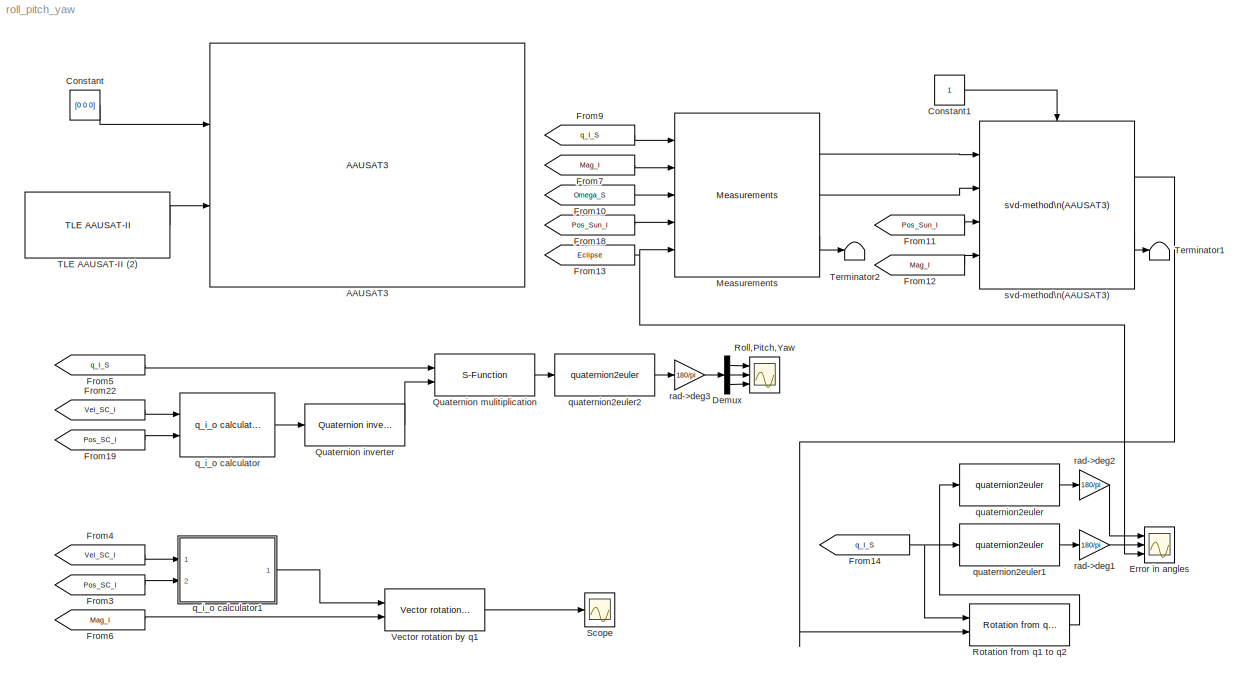
MODEL roll_pitch_yaw
KIND model
BLOCK [Reference] AAUSAT3  REF=aausat3_lib/AAUSAT3  (lib defined in mdl_4157f6465749, slx_d9305f96731e)
  Cd = 2
  Dim = [0.1,0.1,0.11]
  FunctionWithSeparateData = off
  Ports = [2]
  RTWMemSecDataConstants = Inherit from model
  RTWMemSecDataInternal = Inherit from model
  RTWMemSecDataParameters = Inherit from model
  RTWMemSecFuncExecute = Inherit from model
  RTWMemSecFuncInitTerm = Inherit from model
  SID = 11
  ShowPortLabels = none
  SourceBlock = aausat3_lib/AAUSAT3
  SystemSampleTime = -1
  Ts = 1
  enable_env_disturbance = on
  enable_sensor_emulation = on
  inertia_c = [0.0017464,0.0022092,0.0022388]
  init_jd = 2455153.1954318+0.035
  mass_sc = 0.957820
  q_init_I_S = [0 0 0 1]
  q_s_c = [-0.020656,0.71468,-0.007319,0.6991]
  r_com_s = [0.049073,0.048909,0.042976]
  redfac = 1
  refldata = load('lib/AlbedoToolbox-1.0/refl_data/2005/ga050101-051231')
  rho = 5e-14
  sat_temp_start = 293.15
  solar_absorb_coeff = 1.5
  solar_m_flux = 4.5565e-6
  theta_e = 65
  w_init_s = [0.02,0.02,0.02]
BLOCK [Constant] Constant
  OutDataType = fixdt(1, 16)
  OutScaling = 2^0
  SID = 12
  Value = [0 0 0]
BLOCK [Constant] Constant1
  OutDataType = fixdt(1, 16)
  OutScaling = 2^0
  SID = 39
BLOCK [Demux] Demux
  DisplayOption = bar
  Outputs = 3
  Ports = [1, 3]
  SID = 1
BLOCK [Scope] Error in angles
  DataFormat = StructureWithTime
  Floating = off
  LimitDataPoints = off
  NumInputPorts = 3
  Ports = [3]
  SID = 45
  SampleInput = on
  SampleTime = 1
  SaveName = ScopeData2
  TimeRange = 6000
  YMax = 17.5~140~1
  YMin = -27.5~-80~-1
BLOCK [From] From10
  CloseFcn = tagdialog Close
  GotoTag = Omega_S
  SID = 36
  TagVisibility = global
BLOCK [From] From11
  CloseFcn = tagdialog Close
  GotoTag = Pos_Sun_I
  SID = 41
  TagVisibility = global
BLOCK [From] From12
  CloseFcn = tagdialog Close
  GotoTag = Mag_I
  SID = 42
  TagVisibility = global
BLOCK [From] From13
  CloseFcn = tagdialog Close
  GotoTag = Eclipse
  SID = 33
  TagVisibility = global
BLOCK [From] From14
  CloseFcn = tagdialog Close
  GotoTag = q_I_S
  SID = 47
  TagVisibility = global
BLOCK [From] From18
  CloseFcn = tagdialog Close
  GotoTag = Pos_Sun_I
  SID = 34
  TagVisibility = global
BLOCK [From] From19
  CloseFcn = tagdialog Close
  GotoTag = Pos_SC_I
  SID = 2
  TagVisibility = global
BLOCK [From] From22
  CloseFcn = tagdialog Close
  GotoTag = Vel_SC_I
  SID = 3
  TagVisibility = global
BLOCK [From] From3
  CloseFcn = tagdialog Close
  GotoTag = Pos_SC_I
  SID = 25
  TagVisibility = global
BLOCK [From] From4
  CloseFcn = tagdialog Close
  GotoTag = Vel_SC_I
  SID = 26
  TagVisibility = global
BLOCK [From] From5
  CloseFcn = tagdialog Close
  GotoTag = q_I_S
  SID = 4
  TagVisibility = global
BLOCK [From] From6
  CloseFcn = tagdialog Close
  GotoTag = Mag_I
  SID = 29
  TagVisibility = global
BLOCK [From] From7
  CloseFcn = tagdialog Close
  GotoTag = Mag_I
  SID = 32
  TagVisibility = global
BLOCK [From] From9
  CloseFcn = tagdialog Close
  GotoTag = q_I_S
  SID = 35
  TagVisibility = global
BLOCK [Reference] Measurements  REF=aausat3_lib/Sensor Emulation/Measurements  (lib defined in mdl_4157f6465749, slx_d9305f96731e)
  FunctionWithSeparateData = off
  Ports = [5, 3]
  RTWMemSecDataConstants = Inherit from model
  RTWMemSecDataInternal = Inherit from model
  RTWMemSecDataParameters = Inherit from model
  RTWMemSecFuncExecute = Inherit from model
  RTWMemSecFuncInitTerm = Inherit from model
  SID = 37
  ShowPortLabels = FromPortIcon
  SourceBlock = aausat3_lib/Sensor Emulation/Measurements
  SystemSampleTime = -1
  bias_gyro = [-0.2 -0.2 -0.2]
  bias_mag = [2000 4000 0]
  bias_sun = [0 0]
  heading_gyro = 0
  heading_mag = 0
  noise_gyro = 0.2
  noise_mag = 3
  noise_sun = 3.33
  nr_sample_sun = 1
  s_freq_gyro = 1
  s_freq_mag = 1
  s_freq_sun = 1
  tilt_gyro = 0
  tilt_mag = 0
BLOCK [Reference] Quaternion inverter  REF=aausat3_lib/Math Utilities/Quaternion operations/Quaternion inverter  (lib defined in mdl_4157f6465749, slx_d9305f96731e)
  FunctionWithSeparateData = off
  Ports = [1, 1]
  RTWMemSecDataConstants = Inherit from model
  RTWMemSecDataInternal = Inherit from model
  RTWMemSecDataParameters = Inherit from model
  RTWMemSecFuncExecute = Inherit from model
  RTWMemSecFuncInitTerm = Inherit from model
  SID = 5
  ShowPortLabels = FromPortIcon
  SourceBlock = aausat3_lib/Math Utilities/Quaternion operations/Quaternion inverter
  SourceType = SubSystem
  SystemSampleTime = -1
BLOCK [S-Function] Quaternion mulitiplication
  EnableBusSupport = off
  FunctionName = qmul
  Ports = [2, 1]
  SID = 6
BLOCK [Scope] Roll,Pitch,Yaw
  DataFormat = StructureWithTime
  Floating = off
  LimitDataPoints = off
  NumInputPorts = 3
  Ports = [3]
  SID = 7
  SampleInput = on
  SampleTime = 1
  TimeRange = 48000
  YMax = 88.1~-35~177.7
  YMin = 86.5~-38~175.7
BLOCK [Reference] Rotation from q1 to q2  REF=aausat3_lib/Math Utilities/Quaternion operations/Rotation from q1 to q2  (lib defined in mdl_4157f6465749, slx_d9305f96731e)
  FunctionWithSeparateData = off
  Ports = [2, 1]
  RTWMemSecDataConstants = Inherit from model
  RTWMemSecDataInternal = Inherit from model
  RTWMemSecDataParameters = Inherit from model
  RTWMemSecFuncExecute = Inherit from model
  RTWMemSecFuncInitTerm = Inherit from model
  SID = 48
  ShowPortLabels = FromPortIcon
  SourceBlock = aausat3_lib/Math Utilities/Quaternion operations/Rotation from q1 to q2
  SourceType = SubSystem
  SystemSampleTime = -1
BLOCK [Scope] Scope
  DataFormat = StructureWithTime
  Floating = off
  LimitDataPoints = off
  NumInputPorts = 1
  Ports = [1]
  SID = 31
  SampleTime = 0
  SaveName = ScopeData1
  YMax = -1e-006
  YMin = -2.2e-005
BLOCK [Reference] TLE AAUSAT-II (2)  REF=aausat3_lib/Orbit and Ephemeris/TLE AAUSAT-II  (lib defined in mdl_4157f6465749, slx_d9305f96731e)
  FunctionWithSeparateData = off
  JulianDay = 09321.69542252
  Ports = [0, 1]
  RTWMemSecDataConstants = Inherit from model
  RTWMemSecDataInternal = Inherit from model
  RTWMemSecDataParameters = Inherit from model
  RTWMemSecFuncExecute = Inherit from model
  RTWMemSecFuncInitTerm = Inherit from model
  SID = 17
  ShowPortLabels = FromPortIcon
  SourceBlock = aausat3_lib/Orbit and Ephemeris/TLE AAUSAT-II
  SystemSampleTime = -1
  bstar = .76898e-4
  eo = 0.0014245
  omegao = 254.1774
  satname = 'AAUSAT-II'
  ts = 1
  xincl = 97.9251
  xmo = 105.7862
  xndd6o = 0.0
  xndt2o = 0.00000555
  xno = 14.81823818
  xnodeo = 24.1597
BLOCK [Terminator] Terminator1
  SID = 54
BLOCK [Terminator] Terminator2
  SID = 40
BLOCK [Reference] Vector rotation by q1  REF=aausat3_lib/Math Utilities/Quaternion operations/Vector rotation by q  (lib defined in mdl_4157f6465749, slx_d9305f96731e)
  FunctionWithSeparateData = off
  Ports = [2, 1]
  RTWMemSecDataConstants = Inherit from model
  RTWMemSecDataInternal = Inherit from model
  RTWMemSecDataParameters = Inherit from model
  RTWMemSecFuncExecute = Inherit from model
  RTWMemSecFuncInitTerm = Inherit from model
  SID = 30
  ShowPortLabels = FromPortIcon
  SourceBlock = aausat3_lib/Math Utilities/Quaternion operations/Vector rotation by q
  SourceType = SubSystem
  SystemSampleTime = -1
BLOCK [Reference] q_i_o calculator  REF=aausat3_lib/Math Utilities/q_i_o calculator  (lib defined in mdl_4157f6465749, slx_d9305f96731e)
  FunctionWithSeparateData = off
  Ports = [2, 1]
  RTWMemSecDataConstants = Inherit from model
  RTWMemSecDataInternal = Inherit from model
  RTWMemSecDataParameters = Inherit from model
  RTWMemSecFuncExecute = Inherit from model
  RTWMemSecFuncInitTerm = Inherit from model
  SID = 8
  ShowPortLabels = FromPortIcon
  SourceBlock = aausat3_lib/Math Utilities/q_i_o calculator
  SourceType = SubSystem
  SystemSampleTime = -1
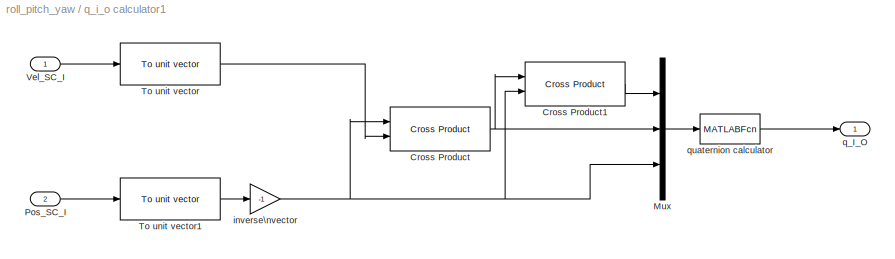
BLOCK [SubSystem] q_i_o calculator1
  AncestorBlock = aausat3_lib/Math Utilities/q_i_o calculator
  FunctionWithSeparateData = off
  MaskHideContents = off
  MinAlgLoopOccurrences = off
  Opaque = off
  Ports = [2, 1]
  PropExecContextOutsideSubsystem = off
  RTWSystemCode = Auto
  RequestExecContextInheritance = off
  SID = 22
BLOCK [Reference] q_i_o calculator1/Cross Product  REF=aausat3_lib/Math Utilities/Vector operations/Cross Product  (lib defined in mdl_4157f6465749, slx_d9305f96731e)
  FunctionWithSeparateData = off
  Ports = [2, 1]
  RTWMemSecDataConstants = Inherit from model
  RTWMemSecDataInternal = Inherit from model
  RTWMemSecDataParameters = Inherit from model
  RTWMemSecFuncExecute = Inherit from model
  RTWMemSecFuncInitTerm = Inherit from model
  SID = 522
  ShowPortLabels = FromPortIcon
  SourceBlock = aausat3_lib/Math Utilities/Vector operations/Cross Product
  SourceType = SubSystem
  SystemSampleTime = -1
BLOCK [Reference] q_i_o calculator1/Cross Product1  REF=aausat3_lib/Math Utilities/Vector operations/Cross Product  (lib defined in mdl_4157f6465749, slx_d9305f96731e)
  FunctionWithSeparateData = off
  Ports = [2, 1]
  RTWMemSecDataConstants = Inherit from model
  RTWMemSecDataInternal = Inherit from model
  RTWMemSecDataParameters = Inherit from model
  RTWMemSecFuncExecute = Inherit from model
  RTWMemSecFuncInitTerm = Inherit from model
  SID = 526
  ShowPortLabels = FromPortIcon
  SourceBlock = aausat3_lib/Math Utilities/Vector operations/Cross Product
  SourceType = SubSystem
  SystemSampleTime = -1
BLOCK [Mux] q_i_o calculator1/Mux
  DisplayOption = bar
  Inputs = 3
  Ports = [3, 1]
  SID = 509
BLOCK [Inport] q_i_o calculator1/Pos_SC_I
  IconDisplay = Port number
  OutDataType = sfix(16)
  OutScaling = 2^0
  Port = 2
  SID = 520
BLOCK [Reference] q_i_o calculator1/To unit vector  REF=aausat3_lib/Math Utilities/Vector operations/To unit vector  (lib defined in mdl_4157f6465749, slx_d9305f96731e)
  FunctionWithSeparateData = off
  Ports = [1, 1]
  RTWMemSecDataConstants = Inherit from model
  RTWMemSecDataInternal = Inherit from model
  RTWMemSecDataParameters = Inherit from model
  RTWMemSecFuncExecute = Inherit from model
  RTWMemSecFuncInitTerm = Inherit from model
  SID = 523
  ShowPortLabels = FromPortIcon
  SourceBlock = aausat3_lib/Math Utilities/Vector operations/To unit vector
  SourceType = SubSystem
  SystemSampleTime = -1
BLOCK [Reference] q_i_o calculator1/To unit vector1  REF=aausat3_lib/Math Utilities/Vector operations/To unit vector  (lib defined in mdl_4157f6465749, slx_d9305f96731e)
  FunctionWithSeparateData = off
  Ports = [1, 1]
  RTWMemSecDataConstants = Inherit from model
  RTWMemSecDataInternal = Inherit from model
  RTWMemSecDataParameters = Inherit from model
  RTWMemSecFuncExecute = Inherit from model
  RTWMemSecFuncInitTerm = Inherit from model
  SID = 524
  ShowPortLabels = FromPortIcon
  SourceBlock = aausat3_lib/Math Utilities/Vector operations/To unit vector
  SourceType = SubSystem
  SystemSampleTime = -1
BLOCK [Inport] q_i_o calculator1/Vel_SC_I
  IconDisplay = Port number
  OutDataType = sfix(16)
  OutScaling = 2^0
  SID = 496
BLOCK [Gain] q_i_o calculator1/inverse\nvector
  Gain = -1
  OutDataType = fixdt(1, 16)
  OutDataTypeMode = Inherit via internal rule
  OutDataTypeStr = Inherit: Inherit via internal rule
  OutScaling = 2^0
  ParamDataTypeStr = Inherit: Inherit via internal rule
  ParameterDataType = fixdt(1, 16)
  ParameterDataTypeMode = Inherit via internal rule
  ParameterScaling = 2^0
  SID = 525
  SaturateOnIntegerOverflow = off
BLOCK [Outport] q_i_o calculator1/q_I_O
  IconDisplay = Port number
  OutDataType = sfix(16)
  OutScaling = 2^0
  SID = 518
BLOCK [MATLABFcn] q_i_o calculator1/quaternion calculator
  Description = Direction cosine matrix computation.                               \nO1,O2,O3 are the three unit vectors representing the axes of the   \nrotated coordinate system given in the reference coordinate system.
  MATLABFcn = dcmatrix_and_q
  Ports = [1, 1]
  SID = 519
BLOCK [Reference] quaternion2euler  REF=aausat3_lib/Math Utilities/Quaternion operations/quaternion2euler  (lib defined in mdl_4157f6465749, slx_d9305f96731e)
  FunctionWithSeparateData = off
  Ports = [1, 1]
  RTWMemSecDataConstants = Inherit from model
  RTWMemSecDataInternal = Inherit from model
  RTWMemSecDataParameters = Inherit from model
  RTWMemSecFuncExecute = Inherit from model
  RTWMemSecFuncInitTerm = Inherit from model
  SID = 50
  ShowPortLabels = FromPortIcon
  SourceBlock = aausat3_lib/Math Utilities/Quaternion operations/quaternion2euler
  SourceType = SubSystem
  SystemSampleTime = -1
BLOCK [Reference] quaternion2euler1  REF=aausat3_lib/Math Utilities/Quaternion operations/quaternion2euler  (lib defined in mdl_4157f6465749, slx_d9305f96731e)
  FunctionWithSeparateData = off
  Ports = [1, 1]
  RTWMemSecDataConstants = Inherit from model
  RTWMemSecDataInternal = Inherit from model
  RTWMemSecDataParameters = Inherit from model
  RTWMemSecFuncExecute = Inherit from model
  RTWMemSecFuncInitTerm = Inherit from model
  SID = 51
  ShowPortLabels = FromPortIcon
  SourceBlock = aausat3_lib/Math Utilities/Quaternion operations/quaternion2euler
  SourceType = SubSystem
  SystemSampleTime = -1
BLOCK [Reference] quaternion2euler2  REF=aausat3_lib/Math Utilities/Quaternion operations/quaternion2euler  (lib defined in mdl_4157f6465749, slx_d9305f96731e)
  FunctionWithSeparateData = off
  Ports = [1, 1]
  RTWMemSecDataConstants = Inherit from model
  RTWMemSecDataInternal = Inherit from model
  RTWMemSecDataParameters = Inherit from model
  RTWMemSecFuncExecute = Inherit from model
  RTWMemSecFuncInitTerm = Inherit from model
  SID = 9
  ShowPortLabels = FromPortIcon
  SourceBlock = aausat3_lib/Math Utilities/Quaternion operations/quaternion2euler
  SourceType = SubSystem
  SystemSampleTime = -1
BLOCK [Gain] rad->deg1
  Gain = 180/pi
  OutDataType = fixdt(1, 16)
  OutDataTypeMode = Inherit via internal rule
  OutDataTypeStr = Inherit: Inherit via internal rule
  OutScaling = 2^0
  ParamDataTypeStr = Inherit: Inherit via internal rule
  ParameterDataType = fixdt(1, 16)
  ParameterDataTypeMode = Inherit via internal rule
  ParameterScaling = 2^0
  SID = 52
  SaturateOnIntegerOverflow = off
BLOCK [Gain] rad->deg2
  Gain = 180/pi
  OutDataType = fixdt(1, 16)
  OutDataTypeMode = Inherit via internal rule
  OutDataTypeStr = Inherit: Inherit via internal rule
  OutScaling = 2^0
  ParamDataTypeStr = Inherit: Inherit via internal rule
  ParameterDataType = fixdt(1, 16)
  ParameterDataTypeMode = Inherit via internal rule
  ParameterScaling = 2^0
  SID = 53
  SaturateOnIntegerOverflow = off
BLOCK [Gain] rad->deg3
  Gain = 180/pi
  OutDataType = fixdt(1, 16)
  OutDataTypeMode = Inherit via internal rule
  OutDataTypeStr = Inherit: Inherit via internal rule
  OutScaling = 2^0
  ParamDataTypeStr = Inherit: Inherit via internal rule
  ParameterDataType = fixdt(1, 16)
  ParameterDataTypeMode = Inherit via internal rule
  ParameterScaling = 2^0
  SID = 10
  SaturateOnIntegerOverflow = off
BLOCK [Reference] svd-method\n(AAUSAT3)  REF=aausat3_lib/ADS/svd-method\n(AAUSAT3)  (lib defined in mdl_4157f6465749, slx_d9305f96731e)
  FunctionWithSeparateData = off
  Ports = [4, 2, 1]
  RTWMemSecDataConstants = Inherit from model
  RTWMemSecDataInternal = Inherit from model
  RTWMemSecDataParameters = Inherit from model
  RTWMemSecFuncExecute = Inherit from model
  RTWMemSecFuncInitTerm = Inherit from model
  SID = 38
  ShowPortLabels = FromPortIcon
  SourceBlock = aausat3_lib/ADS/svd-method\n(AAUSAT3)
  SystemSampleTime = -1
  f_sample = 10
  weigth_a = [1/0.0034 1/0.0027]
LINE Constant1:1 -> svd-method\n(AAUSAT3):enable
LINE Constant:1 -> AAUSAT3:1
LINE Demux:1 -> Roll,Pitch,Yaw:1
LINE Demux:2 -> Roll,Pitch,Yaw:2
LINE Demux:3 -> Roll,Pitch,Yaw:3
LINE From10:1 -> Measurements:3
LINE From11:1 -> svd-method\n(AAUSAT3):3
LINE From12:1 -> svd-method\n(AAUSAT3):4
NET From13:1 -> Error in angles:3, Measurements:5
NET From14:1 -> Rotation from q1 to q2:1, quaternion2euler1:1
LINE From18:1 -> Measurements:4
LINE From19:1 -> q_i_o calculator:2
LINE From22:1 -> q_i_o calculator:1
LINE From3:1 -> q_i_o calculator1:2
LINE From4:1 -> q_i_o calculator1:1
LINE From5:1 -> Quaternion mulitiplication:1
LINE From6:1 -> Vector rotation by q1:2
LINE From7:1 -> Measurements:2
LINE From9:1 -> Measurements:1
LINE Measurements:1 -> svd-method\n(AAUSAT3):1
LINE Measurements:2 -> svd-method\n(AAUSAT3):2
LINE Measurements:3 -> Terminator2:1
LINE Quaternion inverter:1 -> Quaternion mulitiplication:2
LINE Quaternion mulitiplication:1 -> quaternion2euler2:1
LINE Rotation from q1 to q2:1 -> quaternion2euler:1
LINE TLE AAUSAT-II (2):1 -> AAUSAT3:2
LINE Vector rotation by q1:1 -> Scope:1
LINE q_i_o calculator1/Cross Product1:1 -> q_i_o calculator1/Mux:1
NET q_i_o calculator1/Cross Product:1 -> q_i_o calculator1/Cross Product1:1, q_i_o calculator1/Mux:2
LINE q_i_o calculator1/Mux:1 -> q_i_o calculator1/quaternion calculator:1
LINE q_i_o calculator1/Pos_SC_I:1 -> q_i_o calculator1/To unit vector1:1
LINE q_i_o calculator1/To unit vector1:1 -> q_i_o calculator1/inverse\nvector:1
LINE q_i_o calculator1/To unit vector:1 -> q_i_o calculator1/Cross Product:2
LINE q_i_o calculator1/Vel_SC_I:1 -> q_i_o calculator1/To unit vector:1
NET q_i_o calculator1/inverse\nvector:1 -> q_i_o calculator1/Cross Product1:2, q_i_o calculator1/Cross Product:1, q_i_o calculator1/Mux:3
LINE q_i_o calculator1/quaternion calculator:1 -> q_i_o calculator1/q_I_O:1
LINE q_i_o calculator1:1 -> Vector rotation by q1:1
LINE q_i_o calculator:1 -> Quaternion inverter:1
LINE quaternion2euler1:1 -> rad->deg1:1
LINE quaternion2euler2:1 -> rad->deg3:1
LINE quaternion2euler:1 -> rad->deg2:1
LINE rad->deg1:1 -> Error in angles:2
LINE rad->deg2:1 -> Error in angles:1
LINE rad->deg3:1 -> Demux:1
LINE svd-method\n(AAUSAT3):1 -> Rotation from q1 to q2:2
LINE svd-method\n(AAUSAT3):2 -> Terminator1:1
note: NET lines group one-source signal fan-out (src -> all destinations, sorted); 1:1 wires keep LINE
